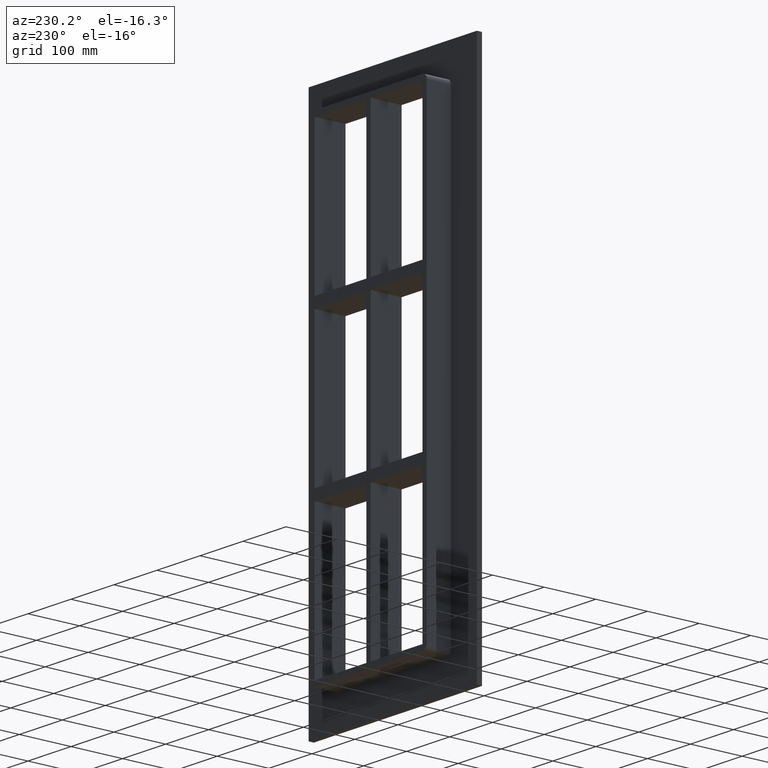
[diagram: clean part render]
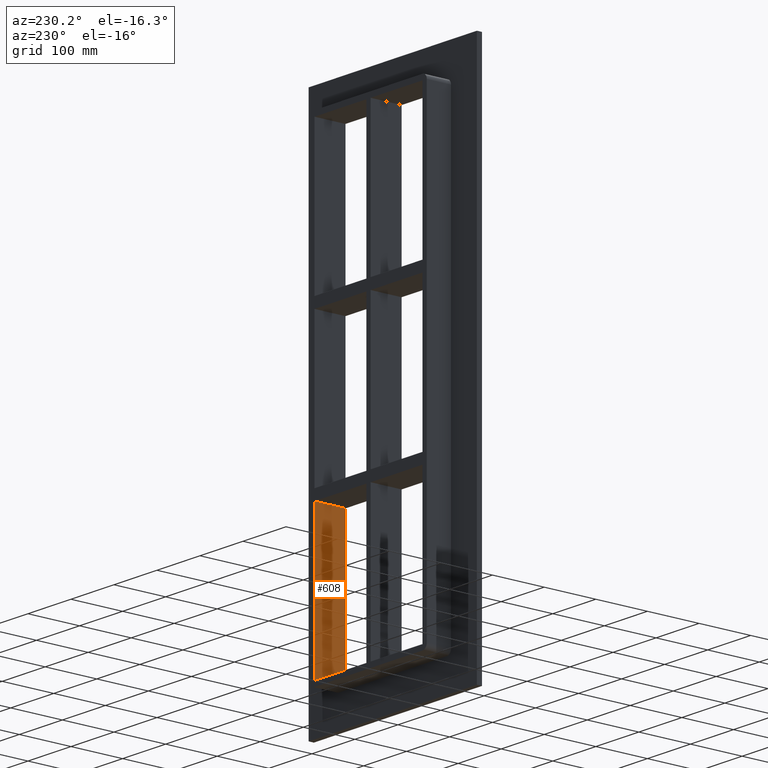
[diagram: same view with one face highlighted and labeled with its STEP entity id]
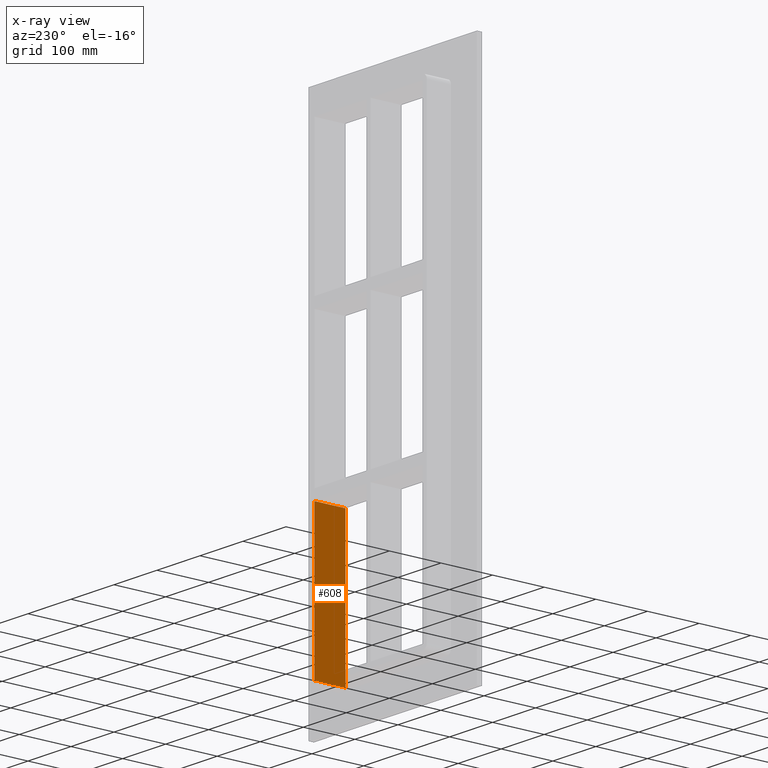
[diagram: x-ray of the same camera — body ghosted, the highlighted face saturated]
A machine part, auxiliary view. The second image highlights one B-rep face of the part: STEP entity #608.
The next image is the same camera in x-ray: the body ghosted, the highlighted face saturated — about 0% of this face is hidden behind the body in this view.
In plain terms, the highlighted planar face has unit normal (1, 0, 0).
Its self-contained STEP definition (entity closure, byte-faithful):
#429=CARTESIAN_POINT('',(125.50000000000182,57.0,-159.00000000000938));
#430=VERTEX_POINT('',#429);
#437=CARTESIAN_POINT('',(125.50000000000182,-3.0,-159.00000000000938));
#438=VERTEX_POINT('',#437);
#439=CARTESIAN_POINT('',(125.5,-3.0,-159.00000000000938));
#440=DIRECTION('',(0.0,1.0,0.0));
#441=VECTOR('',#440,60.000000000000007);
#442=LINE('',#439,#441);
#443=EDGE_CURVE('',#438,#430,#442,.T.);
#578=CARTESIAN_POINT('',(125.5,0.0,437.0));
#579=DIRECTION('',(1.0,0.0,0.0));
#580=DIRECTION('',(0.0,0.0,-1.0));
#581=AXIS2_PLACEMENT_3D('',#578,#579,#580);
#582=PLANE('',#581);
#583=ORIENTED_EDGE('',*,*,#443,.T.);
#584=CARTESIAN_POINT('',(125.5,57.0,-437.0));
#585=VERTEX_POINT('',#584);
#586=CARTESIAN_POINT('',(125.5,57.0,-437.00000000000011));
#587=DIRECTION('',(0.0,0.0,1.0));
#588=VECTOR('',#587,277.99999999999073);
#589=LINE('',#586,#588);
#590=EDGE_CURVE('',#585,#430,#589,.T.);
#591=ORIENTED_EDGE('',*,*,#590,.F.);
#592=CARTESIAN_POINT('',(125.5,-3.0,-437.0));
#593=VERTEX_POINT('',#592);
#594=CARTESIAN_POINT('',(125.5,57.0,-437.0));
#595=DIRECTION('',(0.0,-1.0,0.0));
#596=VECTOR('',#595,60.0);
#597=LINE('',#594,#596);
#598=EDGE_CURVE('',#585,#593,#597,.T.);
#599=ORIENTED_EDGE('',*,*,#598,.T.);
#600=CARTESIAN_POINT('',(125.5,-3.0,-159.00000000000938));
#601=DIRECTION('',(0.0,0.0,-1.0));
#602=VECTOR('',#601,277.99999999999073);
#603=LINE('',#600,#602);
#604=EDGE_CURVE('',#438,#593,#603,.T.);
#605=ORIENTED_EDGE('',*,*,#604,.F.);
#606=EDGE_LOOP('',(#583,#591,#599,#605));
#607=FACE_OUTER_BOUND('',#606,.T.);
#608=ADVANCED_FACE('',(#607),#582,.F.);